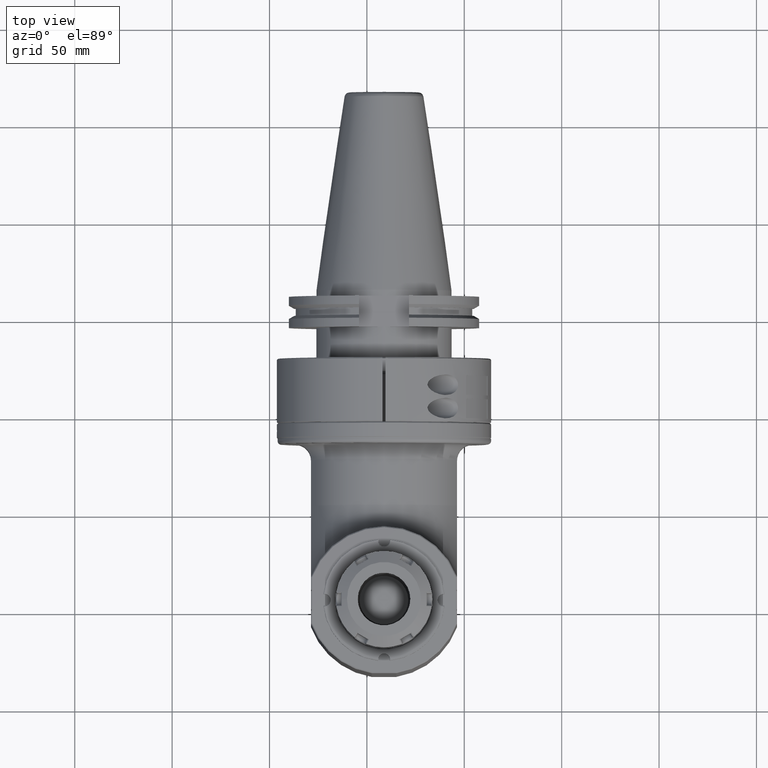
[diagram: clean part render]
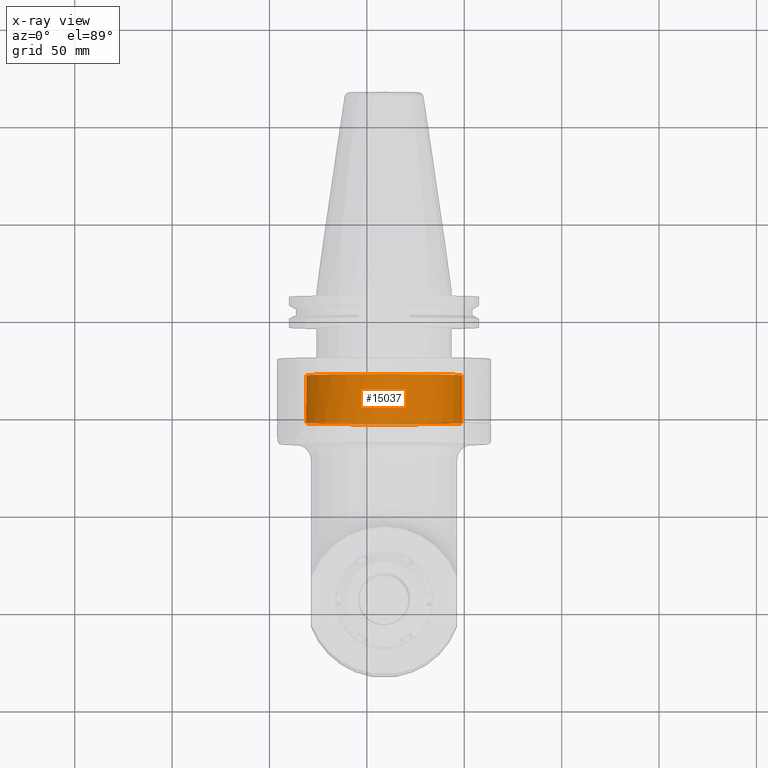
[diagram: x-ray — body ghosted, one internal face saturated and labeled with its STEP entity id]
A machine part, top view, then the same camera in x-ray: the body is ghosted and one INTERNAL B-rep face — a face not visible from any outside direction — is saturated and labeled: STEP entity #15037.
In plain terms, the highlighted cylindrical surface (bore or boss wall) has radius 40 mm, axis along (-0, -1, 0).
Its self-contained STEP definition (entity closure, byte-faithful):
#1260=FACE_OUTER_BOUND('',#2152,.T.);
#2152=EDGE_LOOP('',(#10444,#10445,#10446,#10447,#10448));
#3100=CIRCLE('',#16002,40.);
#3115=CIRCLE('',#16036,40.);
#3116=CIRCLE('',#16037,40.);
#3760=LINE('',#22561,#5082);
#5082=VECTOR('',#17736,40.);
#6416=VERTEX_POINT('',#22487);
#6437=VERTEX_POINT('',#22560);
#6438=VERTEX_POINT('',#22562);
#7967=EDGE_CURVE('',#6416,#6416,#3100,.T.);
#8000=EDGE_CURVE('',#6416,#6437,#3760,.T.);
#8001=EDGE_CURVE('',#6438,#6437,#3115,.T.);
#8002=EDGE_CURVE('',#6437,#6438,#3116,.T.);
#10444=ORIENTED_EDGE('',*,*,#7967,.T.);
#10445=ORIENTED_EDGE('',*,*,#8000,.T.);
#10446=ORIENTED_EDGE('',*,*,#8001,.F.);
#10447=ORIENTED_EDGE('',*,*,#8002,.F.);
#10448=ORIENTED_EDGE('',*,*,#8000,.F.);
#14832=CYLINDRICAL_SURFACE('',#16035,40.);
#15037=ADVANCED_FACE('',(#1260),#14832,.T.);
#16002=AXIS2_PLACEMENT_3D('',#22488,#17650,#17651);
#16035=AXIS2_PLACEMENT_3D('',#22559,#17734,#17735);
#16036=AXIS2_PLACEMENT_3D('',#22563,#17737,#17738);
#16037=AXIS2_PLACEMENT_3D('',#22564,#17739,#17740);
#17650=DIRECTION('center_axis',(0.,1.,0.));
#17651=DIRECTION('ref_axis',(1.,0.,0.));
#17734=DIRECTION('center_axis',(0.,-1.,0.));
#17735=DIRECTION('ref_axis',(-1.,0.,0.));
#17736=DIRECTION('',(0.,1.,0.));
#17737=DIRECTION('center_axis',(0.,1.,0.));
#17738=DIRECTION('ref_axis',(1.,0.,0.));
#17739=DIRECTION('center_axis',(0.,1.,0.));
#17740=DIRECTION('ref_axis',(1.,0.,0.));
#22487=CARTESIAN_POINT('',(40.,92.,4.89858719658941E-15));
#22488=CARTESIAN_POINT('Origin',(0.,92.,0.));
#22559=CARTESIAN_POINT('Origin',(0.,122.85,0.));
#22560=CARTESIAN_POINT('',(40.,116.5000188126,4.89858719658941E-15));
#22561=CARTESIAN_POINT('',(40.,122.85,4.89858719658941E-15));
#22562=CARTESIAN_POINT('',(4.61625643464213E-13,116.500018812577,39.9999999999771));
#22563=CARTESIAN_POINT('Origin',(0.,116.5000188126,0.));
#22564=CARTESIAN_POINT('Origin',(0.,116.5000188126,0.));